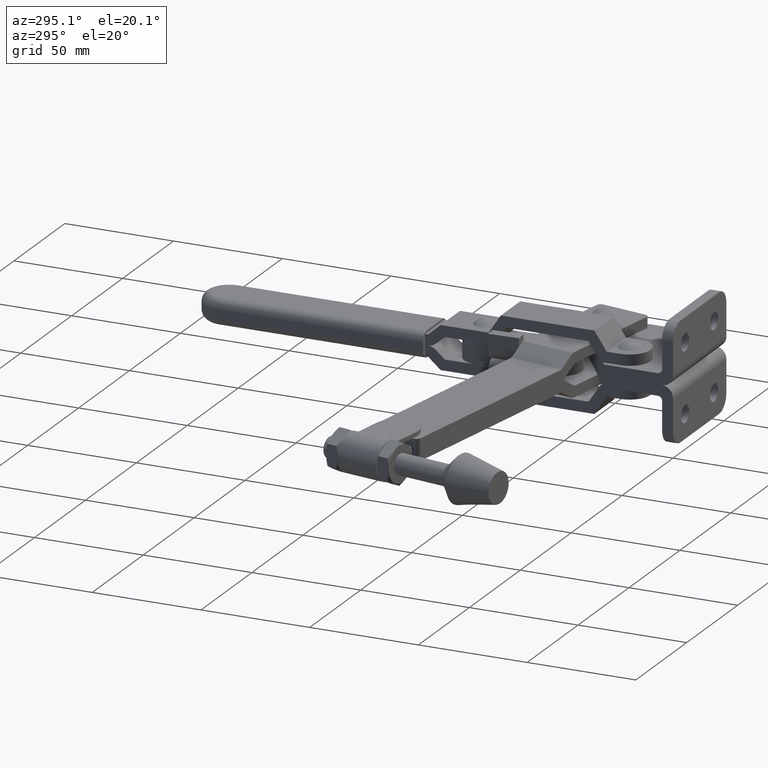
[diagram: clean part render]
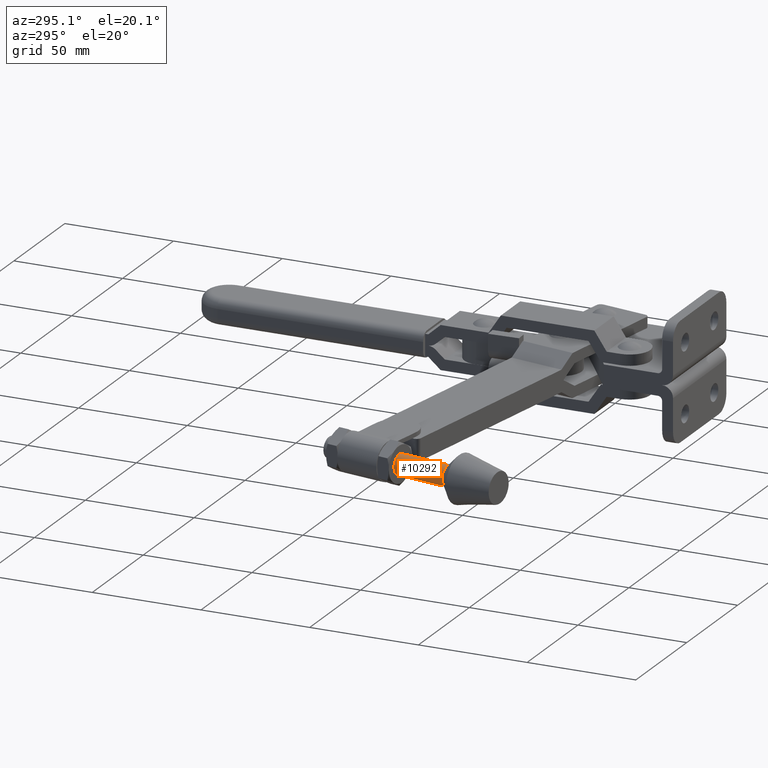
[diagram: same view with one face highlighted and labeled with its STEP entity id]
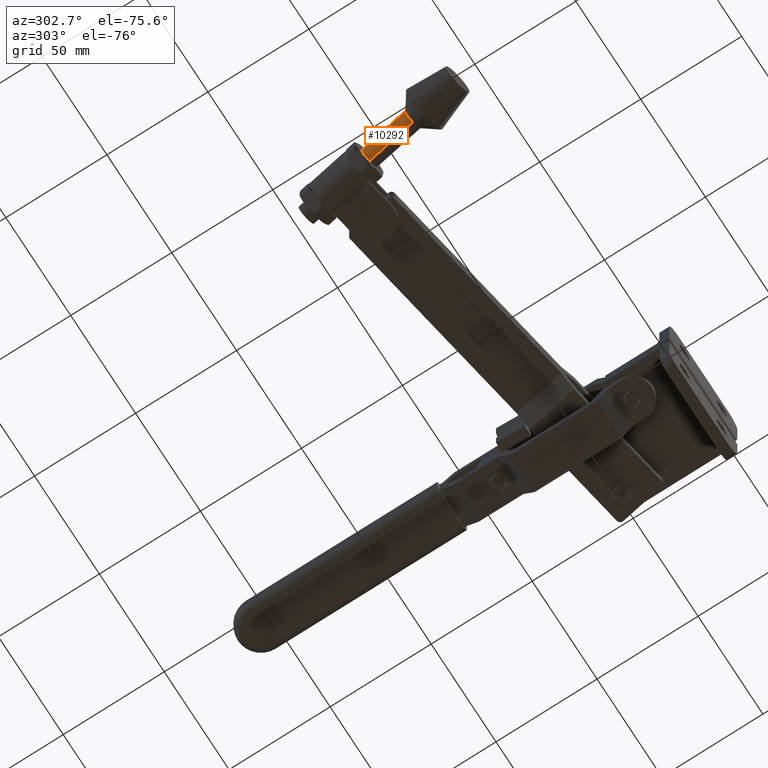
[diagram: same view with one face highlighted and labeled with its STEP entity id]
A machine part, auxiliary view. The second image highlights one B-rep face of the part: STEP entity #10292.
A second angle (auxiliary view) of the same face is appended — the face is thin or edge-on in the first view.
In plain terms, the highlighted cylindrical surface (edge-blend (fillet) strip) has radius 4.7625 mm, axis along (-0.1757, -0.9844, -0).
Its self-contained STEP definition (entity closure, byte-faithful):
#98 = CARTESIAN_POINT ( 'NONE',  ( -141.4194383756285700, 13.86351934010999200, 4.760945405895745900 ) ) ;
#396 = CYLINDRICAL_SURFACE ( 'NONE', #9290, 4.762500000000009900 ) ;
#556 = DIRECTION ( 'NONE',  ( -0.1756898518898459800, -0.9844455677907865100, -8.379368557693178000E-015 ) ) ;
#563 = VERTEX_POINT ( 'NONE', #670 ) ;
#670 = CARTESIAN_POINT ( 'NONE',  ( -132.6349457811362800, 63.08579772964931500, 4.760945405896165100 ) ) ;
#790 = DIRECTION ( 'NONE',  ( -0.02515140646251234200, 0.004488665519765416700, -0.9996735760411040700 ) ) ;
#795 = EDGE_CURVE ( 'NONE', #2654, #2766, #8580, .T. ) ;
#921 = EDGE_LOOP ( 'NONE', ( #9186, #3576, #9690, #4787 ) ) ;
#922 = EDGE_CURVE ( 'NONE', #563, #2654, #3777, .T. ) ;
#1966 = EDGE_CURVE ( 'NONE', #8780, #2766, #3627, .T. ) ;
#2207 = CARTESIAN_POINT ( 'NONE',  ( -132.8745129276917100, 63.12855226872507300, -4.760945405895372000 ) ) ;
#2363 = CARTESIAN_POINT ( 'NONE',  ( -141.6590055221840000, 13.90627387918575800, -4.760945405895791200 ) ) ;
#2388 = DIRECTION ( 'NONE',  ( -0.1756898518898459800, -0.9844455677907865100, -8.379368557693178000E-015 ) ) ;
#2421 = CARTESIAN_POINT ( 'NONE',  ( -141.5392219489062900, 13.88489660964787500, -2.215250869190849800E-014 ) ) ;
#2654 = VERTEX_POINT ( 'NONE', #2207 ) ;
#2766 = VERTEX_POINT ( 'NONE', #5164 ) ;
#2780 = CARTESIAN_POINT ( 'NONE',  ( -137.0591307257152200, 38.98825858831292400, 1.915213895292675300E-013 ) ) ;
#2872 = DIRECTION ( 'NONE',  ( -0.1756898518898459800, -0.9844455677907865100, -8.379368557693178000E-015 ) ) ;
#3421 = AXIS2_PLACEMENT_3D ( 'NONE', #6504, #6477, #4004 ) ;
#3576 = ORIENTED_EDGE ( 'NONE', *, *, #922, .T. ) ;
#3591 = EDGE_CURVE ( 'NONE', #563, #8780, #9692, .T. ) ;
#3627 = CIRCLE ( 'NONE', #6476, 4.762500000000013500 ) ;
#3777 = CIRCLE ( 'NONE', #3421, 4.762500000000011700 ) ;
#4004 = DIRECTION ( 'NONE',  ( -0.9844455677907867400, 0.1756898518898447900, 0.0000000000000000000 ) ) ;
#4178 = VECTOR ( 'NONE', #9472, 1000.000000000000000 ) ;
#4787 = ORIENTED_EDGE ( 'NONE', *, *, #1966, .F. ) ;
#5164 = CARTESIAN_POINT ( 'NONE',  ( -137.1789142989929400, 39.00963585785080300, -4.760945405895592200 ) ) ;
#5708 = DIRECTION ( 'NONE',  ( -0.02515140646251232100, 0.004488665519765048900, -0.9996735760411040700 ) ) ;
#6476 = AXIS2_PLACEMENT_3D ( 'NONE', #2780, #556, #5708 ) ;
#6477 = DIRECTION ( 'NONE',  ( -0.1756898518898459800, -0.9844455677907865100, -8.379368557693178000E-015 ) ) ;
#6504 = CARTESIAN_POINT ( 'NONE',  ( -132.7547293544140000, 63.10717499918719400, 3.968159191927503800E-013 ) ) ;
#6981 = CARTESIAN_POINT ( 'NONE',  ( -136.9393471524375100, 38.96688131877504400, 4.760945405895971500 ) ) ;
#8580 = LINE ( 'NONE', #2363, #4178 ) ;
#8780 = VERTEX_POINT ( 'NONE', #6981 ) ;
#9186 = ORIENTED_EDGE ( 'NONE', *, *, #3591, .F. ) ;
#9290 = AXIS2_PLACEMENT_3D ( 'NONE', #2421, #2388, #790 ) ;
#9448 = VECTOR ( 'NONE', #2872, 1000.000000000000000 ) ;
#9472 = DIRECTION ( 'NONE',  ( -0.1756898518898459800, -0.9844455677907865100, -8.379368557693178000E-015 ) ) ;
#9690 = ORIENTED_EDGE ( 'NONE', *, *, #795, .T. ) ;
#9692 = LINE ( 'NONE', #98, #9448 ) ;
#10192 = FACE_OUTER_BOUND ( 'NONE', #921, .T. ) ;
#10292 = ADVANCED_FACE ( 'NONE', ( #10192 ), #396, .T. ) ;